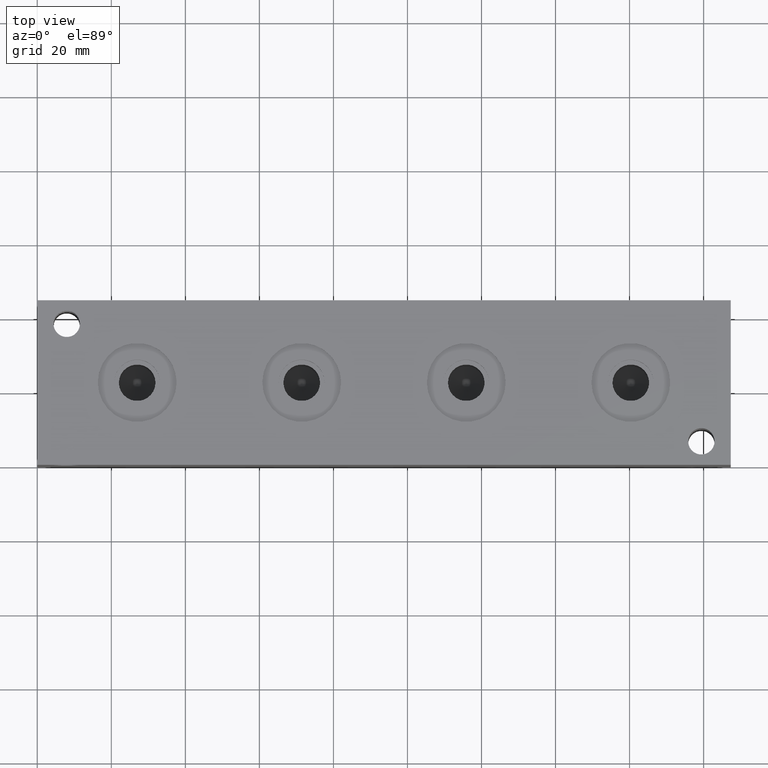
[diagram: clean part render]
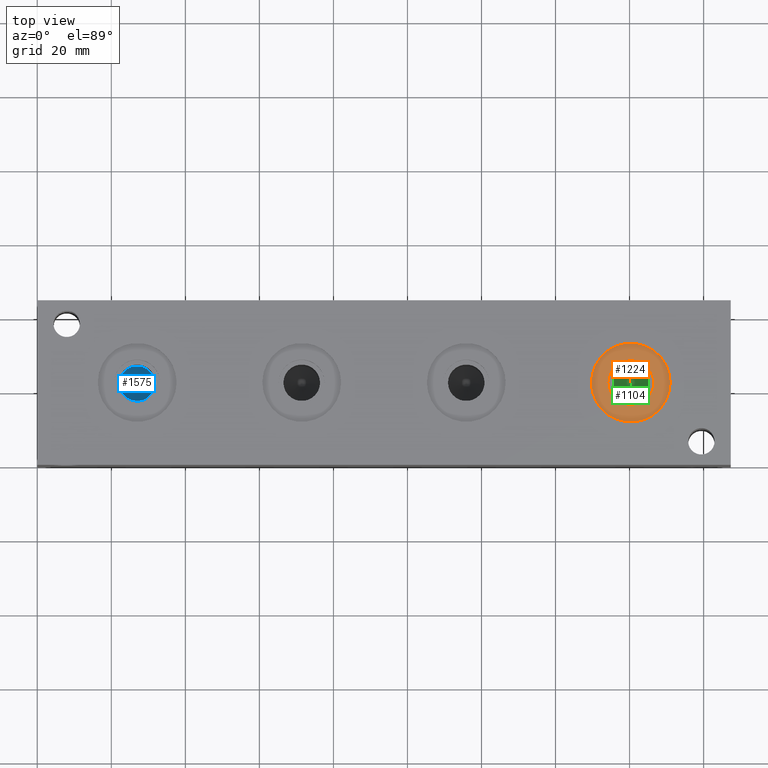
[diagram: same view with three faces highlighted in distinct colors, each labeled with its STEP entity id]
A machine part, top view with three faces highlighted in distinct colors.
Their STEP definitions:

[orange] entity #1224 — the highlighted planar face has unit normal (0, 0, -1).
#1190=CARTESIAN_POINT('',(166.522400000000030,22.225000000000001,43.662600000000005));
#1191=VERTEX_POINT('',#1190);
#1192=CARTESIAN_POINT('',(160.324800000000040,22.225000000000001,43.662600000000005));
#1193=DIRECTION('',(0.0,0.0,1.0));
#1194=DIRECTION('',(1.0,0.0,0.0));
#1195=AXIS2_PLACEMENT_3D('',#1192,#1193,#1194);
#1196=CIRCLE('',#1195,6.197599999999994);
#1197=EDGE_CURVE('',#1191,#1191,#1196,.T.);
#1205=CARTESIAN_POINT('',(168.744900000000030,22.225000000000001,43.662600000000005));
#1206=DIRECTION('',(0.0,0.0,-1.0));
#1207=DIRECTION('',(-1.0,0.0,0.0));
#1208=AXIS2_PLACEMENT_3D('',#1205,#1206,#1207);
#1209=PLANE('',#1208);
#1210=CARTESIAN_POINT('',(170.967400000000050,22.225000000000001,43.662600000000005));
#1211=VERTEX_POINT('',#1210);
#1212=CARTESIAN_POINT('',(160.324800000000040,22.225000000000001,43.662600000000005));
#1213=DIRECTION('',(0.0,0.0,1.0));
#1214=DIRECTION('',(1.0,0.0,0.0));
#1215=AXIS2_PLACEMENT_3D('',#1212,#1213,#1214);
#1216=CIRCLE('',#1215,10.642600000000009);
#1217=EDGE_CURVE('',#1211,#1211,#1216,.T.);
#1218=ORIENTED_EDGE('',*,*,#1217,.T.);
#1219=EDGE_LOOP('',(#1218));
#1220=FACE_OUTER_BOUND('',#1219,.T.);
#1221=ORIENTED_EDGE('',*,*,#1197,.F.);
#1222=EDGE_LOOP('',(#1221));
#1223=FACE_BOUND('',#1222,.T.);
#1224=ADVANCED_FACE('',(#1220,#1223),#1209,.F.);

[blue] entity #1575 — the highlighted conical surface has half-angle 60 deg.
#1559=CARTESIAN_POINT('',(26.974800000000002,22.225000000000001,25.447584650000003));
#1560=DIRECTION('',(0.0,0.0,1.0));
#1561=DIRECTION('',(1.0,0.0,0.0));
#1562=AXIS2_PLACEMENT_3D('',#1559,#1560,#1561);
#1563=CONICAL_SURFACE('',#1562,2.381249999999997,59.999999612153566);
#1564=CARTESIAN_POINT('',(31.737299999999998,22.225000000000001,26.822400000000002));
#1565=VERTEX_POINT('',#1564);
#1566=CARTESIAN_POINT('',(26.974800000000002,22.225000000000001,26.822400000000002));
#1567=DIRECTION('',(0.0,0.0,1.0));
#1568=DIRECTION('',(1.0,0.0,0.0));
#1569=AXIS2_PLACEMENT_3D('',#1566,#1567,#1568);
#1570=CIRCLE('',#1569,4.762499999999998);
#1571=EDGE_CURVE('',#1565,#1565,#1570,.T.);
#1572=ORIENTED_EDGE('',*,*,#1571,.T.);
#1573=EDGE_LOOP('',(#1572));
#1574=FACE_OUTER_BOUND('',#1573,.T.);
#1575=ADVANCED_FACE('',(#1574),#1563,.F.);

[green] entity #1104 — the highlighted conical surface has half-angle 60 deg.
#1088=CARTESIAN_POINT('',(160.324800000000040,22.225000000000001,25.447584650000003));
#1089=DIRECTION('',(0.0,0.0,1.0));
#1090=DIRECTION('',(1.0,0.0,0.0));
#1091=AXIS2_PLACEMENT_3D('',#1088,#1089,#1090);
#1092=CONICAL_SURFACE('',#1091,2.381250000000001,59.999999612153616);
#1093=CARTESIAN_POINT('',(165.087300000000030,22.225000000000001,26.822400000000002));
#1094=VERTEX_POINT('',#1093);
#1095=CARTESIAN_POINT('',(160.324800000000040,22.225000000000001,26.822400000000002));
#1096=DIRECTION('',(0.0,0.0,1.0));
#1097=DIRECTION('',(1.0,0.0,0.0));
#1098=AXIS2_PLACEMENT_3D('',#1095,#1096,#1097);
#1099=CIRCLE('',#1098,4.762500000000003);
#1100=EDGE_CURVE('',#1094,#1094,#1099,.T.);
#1101=ORIENTED_EDGE('',*,*,#1100,.T.);
#1102=EDGE_LOOP('',(#1101));
#1103=FACE_OUTER_BOUND('',#1102,.T.);
#1104=ADVANCED_FACE('',(#1103),#1092,.F.);